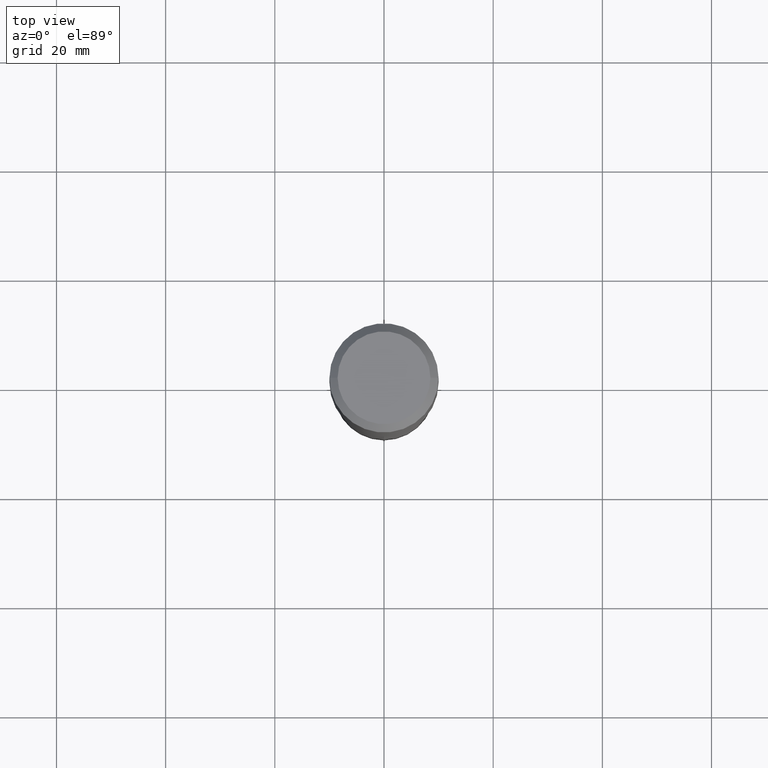
[diagram: clean part render]
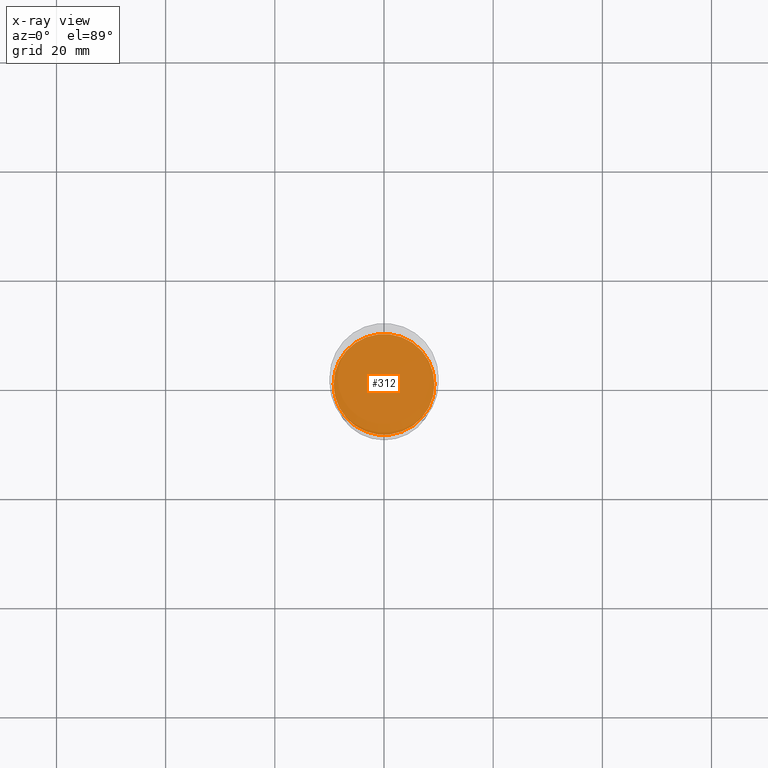
[diagram: x-ray — body ghosted, one internal face saturated and labeled with its STEP entity id]
A machine part, top view, then the same camera in x-ray: the body is ghosted and one INTERNAL B-rep face — a face not visible from any outside direction — is saturated and labeled: STEP entity #312.
In plain terms, the highlighted planar face has unit normal (-0, 0, 1).
Its self-contained STEP definition (entity closure, byte-faithful):
#16 = EDGE_CURVE ( 'NONE', #447, #138, #183, .T. ) ;
#36 = EDGE_LOOP ( 'NONE', ( #270, #122 ) ) ;
#43 = CARTESIAN_POINT ( 'NONE',  ( 6.787643218447464969E-29, -9.690955604093032420E-15, -2.775599999999999845 ) ) ;
#71 = CARTESIAN_POINT ( 'NONE',  ( 6.787643218447464969E-29, -9.690955604093032420E-15, -2.775599999999999845 ) ) ;
#72 = DIRECTION ( 'NONE',  ( 1.000000000000000000, -6.982962677686269866E-15, 0.000000000000000000 ) ) ;
#79 = DIRECTION ( 'NONE',  ( -2.438088387897960049E-29, 3.491481338843145188E-15, 1.000000000000000000 ) ) ;
#110 = CARTESIAN_POINT ( 'NONE',  ( 0.3636500000000000288, -1.223030998183364539E-14, -2.775599999999999845 ) ) ;
#111 = AXIS2_PLACEMENT_3D ( 'NONE', #71, #412, #72 ) ;
#113 = EDGE_CURVE ( 'NONE', #138, #447, #273, .T. ) ;
#122 = ORIENTED_EDGE ( 'NONE', *, *, #16, .F. ) ;
#138 = VERTEX_POINT ( 'NONE', #110 ) ;
#144 = AXIS2_PLACEMENT_3D ( 'NONE', #161, #79, #456 ) ;
#161 = CARTESIAN_POINT ( 'NONE',  ( 6.787643218447464969E-29, -9.690955604093032420E-15, -2.775599999999999845 ) ) ;
#174 = CARTESIAN_POINT ( 'NONE',  ( -0.3636500000000000288, -7.104417718327316688E-15, -2.775599999999999845 ) ) ;
#183 = CIRCLE ( 'NONE', #111, 0.3636500000000000288 ) ;
#192 = PLANE ( 'NONE',  #144 ) ;
#202 = DIRECTION ( 'NONE',  ( 1.000000000000000000, -6.982962677686269866E-15, 0.000000000000000000 ) ) ;
#212 = AXIS2_PLACEMENT_3D ( 'NONE', #43, #307, #202 ) ;
#270 = ORIENTED_EDGE ( 'NONE', *, *, #113, .F. ) ;
#273 = CIRCLE ( 'NONE', #212, 0.3636500000000000288 ) ;
#295 = FACE_OUTER_BOUND ( 'NONE', #36, .T. ) ;
#307 = DIRECTION ( 'NONE',  ( -2.445468806185136597E-29, 3.491481338843145583E-15, 1.000000000000000000 ) ) ;
#312 = ADVANCED_FACE ( 'NONE', ( #295 ), #192, .F. ) ;
#412 = DIRECTION ( 'NONE',  ( -2.445468806185136597E-29, 3.491481338843145583E-15, 1.000000000000000000 ) ) ;
#447 = VERTEX_POINT ( 'NONE', #174 ) ;
#456 = DIRECTION ( 'NONE',  ( 1.000000000000000000, -6.982962677686265922E-15, 4.876176775795935793E-29 ) ) ;